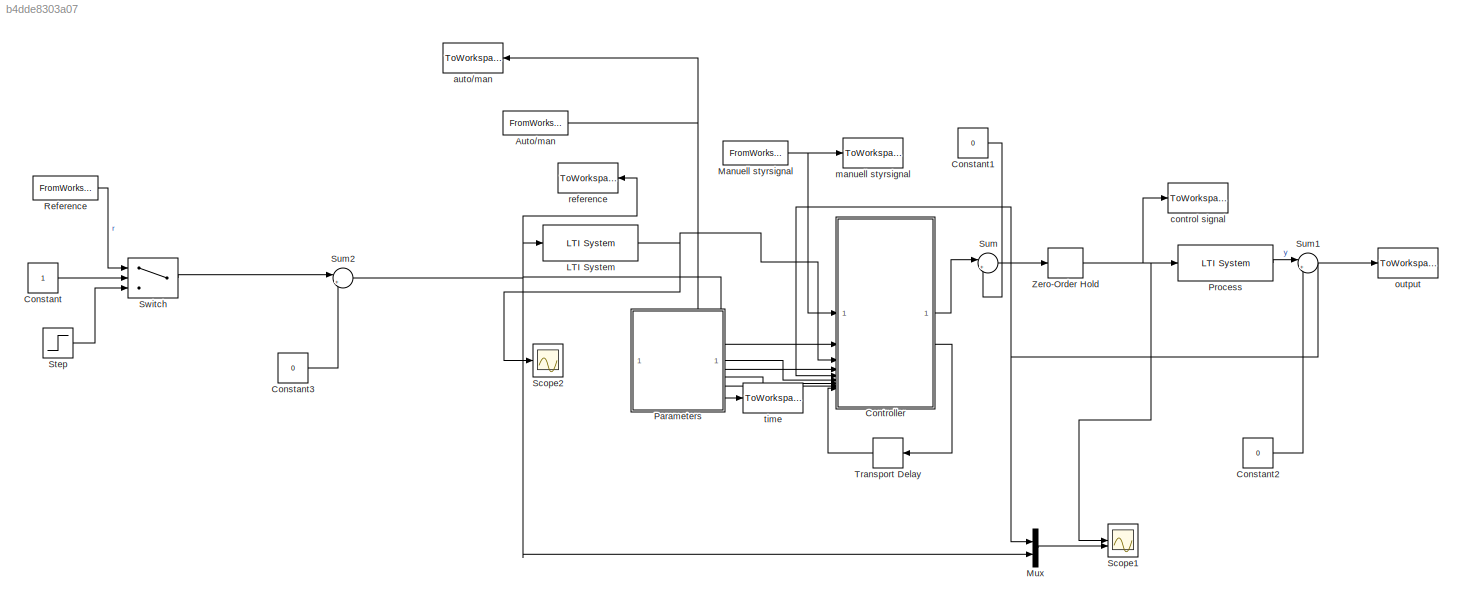
MODEL mdl_b4dde8303a07
KIND model
CONFIG AbsTol = auto
CONFIG EnableMultiTasking = on
CONFIG FixedStep = auto
CONFIG MaxStep = auto
CONFIG MinStep = auto
CONFIG RelTol = 1e-9
CONFIG SampleTimeConstraint = Unconstrained
CONFIG SolverName = ode45
CONFIG StartTime = 0.0
CONFIG StopTime = 150
BLOCK [FromWorkspace] Auto//man
  SampleTime = Ts
  VariableName = amn
BLOCK [Constant] Constant
BLOCK [Constant] Constant1
  Value = 0
BLOCK [Constant] Constant2
  Value = 0
BLOCK [Constant] Constant3
  Value = 0
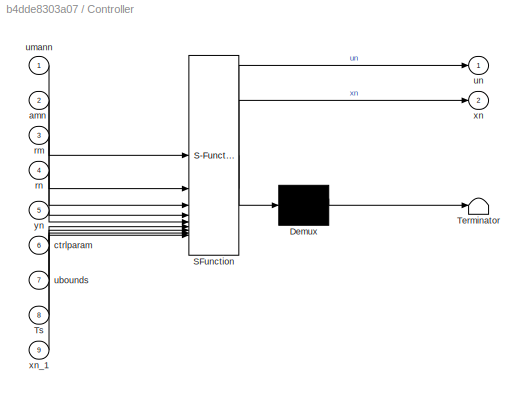
BLOCK [SubSystem] Controller
  ErrorFcn = Stateflow.Translate.translate
  PermitHierarchicalResolution = ExplicitOnly
  SFBlockType = MATLAB Function
  TreatAsAtomicUnit = on
BLOCK [Demux] Controller/ Demux 
  Outputs = 1
BLOCK [S-Function] Controller/ SFunction 
  EnableBusSupport = off
  FunctionName = sf_sfun
  PortCounts = [9 3]
  SFcnIsStateOwnerBlock = off
  SFunctionDeploymentMode = off
  Tag = Stateflow S-Function 2
BLOCK [Terminator] Controller/ Terminator 
BLOCK [Inport] Controller/Ts
  Port = 8
BLOCK [Inport] Controller/amn
  Port = 2
BLOCK [Inport] Controller/ctrlparam
  Port = 6
BLOCK [Inport] Controller/rm
  Port = 3
BLOCK [Inport] Controller/rn
  Port = 4
BLOCK [Inport] Controller/ubounds
  Port = 7
BLOCK [Inport] Controller/umann
BLOCK [Outport] Controller/un
BLOCK [Outport] Controller/xn
  Port = 2
BLOCK [Inport] Controller/xn_1
  Port = 9
BLOCK [Inport] Controller/yn
  Port = 5
BLOCK [Reference] LTI System  REF=cstblocks/LTI System
  SourceBlock = cstblocks/LTI System
  SourceType = LTI Block
BLOCK [FromWorkspace] Manuell styrsignal
  SampleTime = Ts
  VariableName = umann
BLOCK [Mux] Mux
  DisplayOption = bar
  Inputs = 2
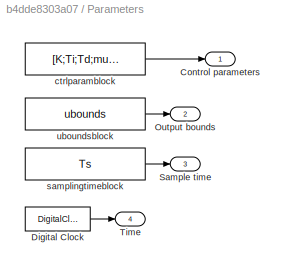
BLOCK [SubSystem] Parameters
BLOCK [Outport] Parameters/Control parameters
BLOCK [DigitalClock] Parameters/Digital Clock
  SampleTime = Ts
BLOCK [Outport] Parameters/Output bounds
  Port = 2
BLOCK [Outport] Parameters/Sample time
  Port = 3
BLOCK [Outport] Parameters/Time
  Port = 4
BLOCK [Constant] Parameters/ctrlparamblock
  Value = [K;Ti;Td;mu;theta(:)]
BLOCK [Constant] Parameters/samplingtimeblock
  Value = Ts
BLOCK [Constant] Parameters/uboundsblock
  Value = ubounds
BLOCK [Reference] Process  REF=cstblocks/LTI System
  SourceBlock = cstblocks/LTI System
  SourceType = LTI Block
BLOCK [FromWorkspace] Reference
  SampleTime = Ts
  VariableName = ref
BLOCK [Scope] Scope1
  ActiveDisplayYMaximum = 4.5
  ActiveDisplayYMinimum = -0.49999999999999989
  DataLoggingDecimateData = on
  DataLoggingDecimation = 1
  DataLoggingSaveFormat = Structure With Time
  DataLoggingVariableName = ScopeData1
  Floating = off
  GraphicalSettings = {"AxesScalingProperties":{"AlignXAxis":"Center","AlignYAxis":"Center","AutoScaleXAxisLimits":false,"AxesScaling":"Manual","AxesScalingNumUpdates":10,"ExpandOnly":true,"ScaleAxesLimitsAtStop":false,"XAxisDataRange":100,"YAxisDataRange":80},"DisplayProperties":{"ColorOrder":["auto","auto","auto","auto","auto","auto","auto","auto","auto","auto","auto","auto","auto","auto","auto","auto","auto","auto",...<+2541ch>
  LayoutDimensionsString = [2 1]
  MultipleDisplayCache = [{"MaxYLimMag":4.5,"MaxYLimReal":4.5,"MinYLimMag":0,"MinYLimReal":-0.49999999999999989,"PlotAsMagnitudePhase":false,"ShowGrid":true,"ShowLegend":false,"Title":"%<SignalLabel>","YLabel":""},{"MaxYLimMag":2.25,"MaxYLimReal":3.7196169088507265,"MinYLimMag":0,"MinYLimReal":-1.2803830911492735,"PlotAsMagnitudePhase":false,"ShowGrid":true,"ShowLegend":false,"Title":"%<SignalLabel>","YLabel":""}]
  NumInputPorts = 2
  ScopeFrameLocation = window
  Visible = on
  WasSavedAsWebScope = on
  WindowPosition = [395.000000,85.000000,745.000000,809.000000,]
BLOCK [Scope] Scope2
  ActiveDisplayYMaximum = 13.195132448435992
  ActiveDisplayYMinimum = -0.45090092422303574
  DataLoggingDecimateData = on
  DataLoggingDecimation = 1
  DataLoggingSaveFormat = Structure With Time
  DataLoggingVariableName = ScopeData2
  Floating = off
  GraphicalSettings = {"Style":{"BackgroundColor":[0.12941176470588237,0.12941176470588237,0.12941176470588237],"AxesColor":[0.07058823529411765,0.07058823529411765,0.07058823529411765],"LabelsColor":[0.8509803921568627,0.8509803921568627,0.8509803921568627],"PreserveColors":false,"Visible":[true,true],"LineStyle":["-","-"],"LineWidth":[1.5,1.5],"BarWidth":[0.9,0.9],"LineColor":["auto","auto"],"LineFaceAlpha":[1,1],"Li...<+2393ch>
  LayoutDimensionsString = [2 1]
  MultipleDisplayCache = [{"MaxYLimMag":10,"MaxYLimReal":13.195132448435992,"MinYLimMag":0,"MinYLimReal":-0.45090092422303574,"PlotAsMagnitudePhase":false,"ShowGrid":true,"ShowLegend":false,"Title":"%<SignalLabel>","YLabel":""},{"MaxYLimMag":10,"MaxYLimReal":3.5827754823344322,"MinYLimMag":0,"MinYLimReal":0.031164719920350636,"PlotAsMagnitudePhase":false,"ShowGrid":true,"ShowLegend":false,"Title":"%<SignalLabel>","YLabel"...<+5ch>
  NumInputPorts = 2
  ScopeFrameLocation = window
  WasSavedAsWebScope = on
  WindowPosition = [393.000000,233.000000,685.000000,420.000000,]
BLOCK [Step] Step
  SampleTime = 0
BLOCK [Sum] Sum
  Inputs = |++
BLOCK [Sum] Sum1
  Inputs = |++
BLOCK [Sum] Sum2
  Inputs = |++
BLOCK [Switch] Switch
  Criteria = u2 > Threshold
  InputSameDT = off
  SaturateOnIntegerOverflow = off
BLOCK [TransportDelay] Transport Delay
  DelayTime = Ts
  FixedBuffer = on
  InitialOutput = zeros(N,1)
BLOCK [ZeroOrderHold] Zero-Order Hold
  SampleTime = Ts
BLOCK [ToWorkspace] auto//man
  MaxDataPoints = inf
  SampleTime = Ts
  VariableName = amnsim
BLOCK [ToWorkspace] control signal
  MaxDataPoints = inf
  SampleTime = Ts
  VariableName = usim
BLOCK [ToWorkspace] manuell styrsignal
  MaxDataPoints = inf
  SampleTime = Ts
  VariableName = umannsim
BLOCK [ToWorkspace] output
  MaxDataPoints = inf
  SampleTime = Ts
  VariableName = ysim
BLOCK [ToWorkspace] reference
  MaxDataPoints = inf
  SampleTime = Ts
  VariableName = rsim
BLOCK [ToWorkspace] time
  MaxDataPoints = inf
  SampleTime = Ts
  VariableName = tsim
NET Auto//man:1 -> Controller:2, auto//man:1
LINE Constant1:1 -> Sum:2
LINE Constant2:1 -> Sum1:2
LINE Constant3:1 -> Sum2:2
LINE Constant:1 -> Switch:2
LINE Controller:1 -> Sum:1
LINE Controller:2 -> Transport Delay:1
NET LTI System:1 -> Controller:3, Scope2:1
NET Manuell styrsignal:1 -> Controller:1, manuell styrsignal:1
LINE Mux:1 -> Scope1:2
LINE Parameters/Digital Clock:1 -> Parameters/Time:1
LINE Parameters/ctrlparamblock:1 -> Parameters/Control parameters:1
LINE Parameters/samplingtimeblock:1 -> Parameters/Sample time:1
LINE Parameters/uboundsblock:1 -> Parameters/Output bounds:1
LINE Parameters:1 -> Controller:6
LINE Parameters:2 -> Controller:7
LINE Parameters:3 -> Controller:8
LINE Parameters:4 -> time:1
LINE Process:1 -> Sum1:1
LINE Reference:1 -> Switch:1
LINE Step:1 -> Switch:3
NET Sum1:1 -> Controller:5, Mux:1, output:1
NET Sum2:1 -> Controller:4, LTI System:1, Mux:2, reference:1
LINE Sum:1 -> Zero-Order Hold:1
LINE Switch:1 -> Sum2:1
LINE Transport Delay:1 -> Controller:9
NET Zero-Order Hold:1 -> Process:1, Scope1:1, control signal:1
note: NET lines group one-source signal fan-out (src -> all destinations, sorted); 1:1 wires keep LINE
CHART Controller states=1 transitions=1
  STATE_LABEL 'eML_blk_kernel()'
  STATE_LABEL 'SCRIPT:\nfunction [un,xn]=computeux(umann,amn,rm,rn,yn,ctrlparam,ubounds,Ts,xn_1)\n% STATE (N = 3):\n%   xn_1(1) = I_mem   (integrator-minne FÖRE uppdatering)\n%   xn_1(2) = e_prev  (föregående fel)\n%   xn_1(3) = bias    (manual-bias för stötfri auto<->man)\n\nK     = double(ctrlparam(1));\nTi    = double(ctrlparam(2));\nTd    = double(ctrlparam(3));\n\ntheta = double(ctrlparam(5:end));   % ctrlparam = [K;T...<+2461ch>'
CHART  states=0 transitions=0
